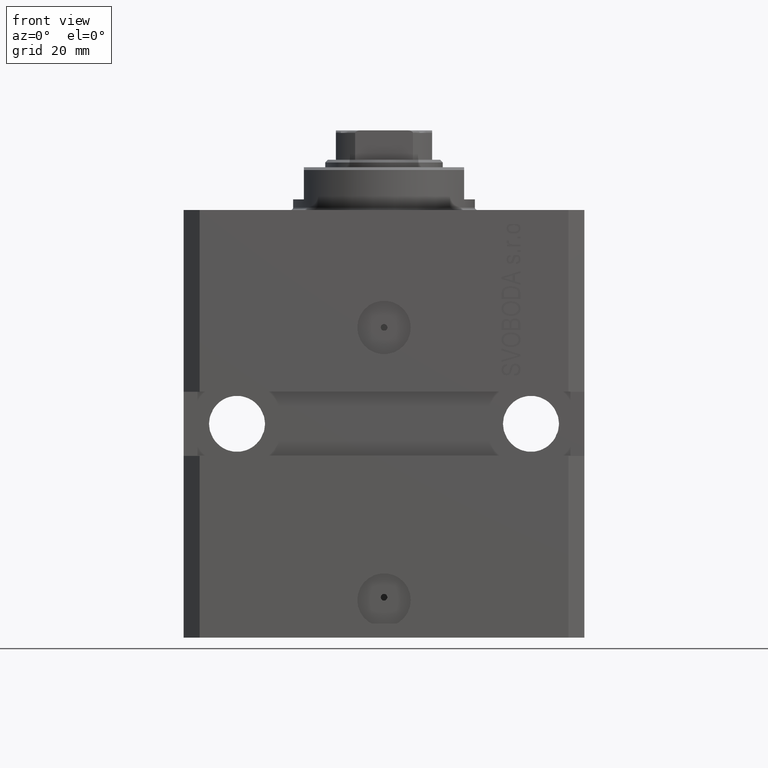
[diagram: clean part render]
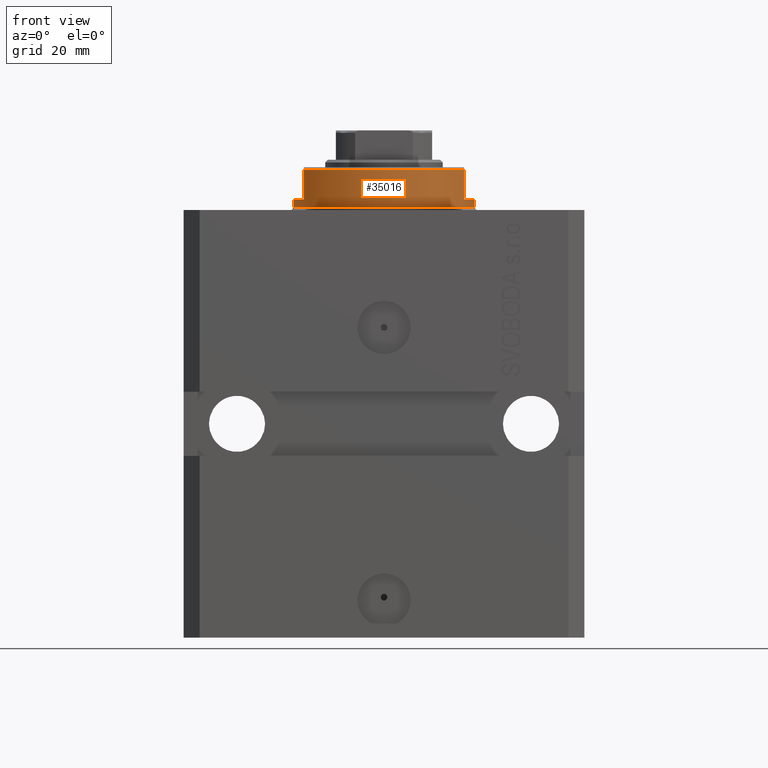
[diagram: same view with one face highlighted and labeled with its STEP entity id]
A machine part, front view. The second image highlights one B-rep face of the part: STEP entity #35016.
In plain terms, the highlighted cylindrical surface (partial cylindrical patch) has radius 17 mm, axis along (0, 0, -1).
Its self-contained STEP definition (entity closure, byte-faithful):
#840 = DIRECTION ( 'NONE',  ( -0.000000000000000000, -0.000000000000000000, 1.000000000000000000 ) ) ;
#2029 = EDGE_CURVE ( 'NONE', #18910, #21755, #34801, .T. ) ;
#2096 = CARTESIAN_POINT ( 'NONE',  ( 17.00000000000000000, 0.000000000000000000, -0.5000000000000004441 ) ) ;
#2336 = ORIENTED_EDGE ( 'NONE', *, *, #8224, .F. ) ;
#3098 = AXIS2_PLACEMENT_3D ( 'NONE', #26187, #840, #25966 ) ;
#4257 = DIRECTION ( 'NONE',  ( -0.000000000000000000, -0.000000000000000000, 1.000000000000000000 ) ) ;
#5372 = VERTEX_POINT ( 'NONE', #14368 ) ;
#8224 = EDGE_CURVE ( 'NONE', #18910, #28346, #45384, .T. ) ;
#8419 = AXIS2_PLACEMENT_3D ( 'NONE', #19452, #30835, #34373 ) ;
#8452 = CIRCLE ( 'NONE', #19822, 17.00000000000000000 ) ;
#8986 = CARTESIAN_POINT ( 'NONE',  ( -17.00000000000000000, 2.081899558550500280E-15, -0.5000000000000004441 ) ) ;
#9517 = CARTESIAN_POINT ( 'NONE',  ( 0.000000000000000000, 0.000000000000000000, -7.500000000000013323 ) ) ;
#9877 = CARTESIAN_POINT ( 'NONE',  ( 14.99999999999999645, -8.000000000000003553, -2.000000000000000000 ) ) ;
#10511 = VERTEX_POINT ( 'NONE', #13228 ) ;
#11768 = DIRECTION ( 'NONE',  ( 0.000000000000000000, 0.000000000000000000, -1.000000000000000000 ) ) ;
#11980 = CARTESIAN_POINT ( 'NONE',  ( 0.000000000000000000, 0.000000000000000000, -0.5000000000000004441 ) ) ;
#12529 = EDGE_CURVE ( 'NONE', #35964, #24806, #34895, .T. ) ;
#13228 = CARTESIAN_POINT ( 'NONE',  ( 17.00000000000000000, 0.000000000000000000, -2.000000000000000000 ) ) ;
#13416 = CARTESIAN_POINT ( 'NONE',  ( -17.00000000000000000, 2.081899558550500280E-15, -8.000000000000000000 ) ) ;
#14368 = CARTESIAN_POINT ( 'NONE',  ( 15.00000000000000000, -8.000000000000001776, -7.500000000000013323 ) ) ;
#15620 = VECTOR ( 'NONE', #42568, 1000.000000000000000 ) ;
#16168 = DIRECTION ( 'NONE',  ( 0.000000000000000000, 0.000000000000000000, 1.000000000000000000 ) ) ;
#16520 = EDGE_CURVE ( 'NONE', #10511, #35964, #30313, .T. ) ;
#16770 = AXIS2_PLACEMENT_3D ( 'NONE', #11980, #29985, #44437 ) ;
#17014 = ORIENTED_EDGE ( 'NONE', *, *, #33891, .F. ) ;
#18910 = VERTEX_POINT ( 'NONE', #35532 ) ;
#19439 = DIRECTION ( 'NONE',  ( 0.000000000000000000, 0.000000000000000000, -1.000000000000000000 ) ) ;
#19452 = CARTESIAN_POINT ( 'NONE',  ( 0.000000000000000000, 0.000000000000000000, -2.000000000000000000 ) ) ;
#19822 = AXIS2_PLACEMENT_3D ( 'NONE', #9517, #16168, #23982 ) ;
#19919 = DIRECTION ( 'NONE',  ( -1.000000000000000000, 0.000000000000000000, 0.000000000000000000 ) ) ;
#20289 = LINE ( 'NONE', #13416, #15620 ) ;
#20388 = AXIS2_PLACEMENT_3D ( 'NONE', #44322, #19439, #19919 ) ;
#20792 = ORIENTED_EDGE ( 'NONE', *, *, #12529, .T. ) ;
#21273 = ORIENTED_EDGE ( 'NONE', *, *, #2029, .T. ) ;
#21755 = VERTEX_POINT ( 'NONE', #32701 ) ;
#23982 = DIRECTION ( 'NONE',  ( -1.000000000000000000, 0.000000000000000000, 0.000000000000000000 ) ) ;
#24806 = VERTEX_POINT ( 'NONE', #8986 ) ;
#25021 = VECTOR ( 'NONE', #11768, 1000.000000000000000 ) ;
#25222 = EDGE_CURVE ( 'NONE', #28346, #24806, #20289, .T. ) ;
#25966 = DIRECTION ( 'NONE',  ( 1.000000000000000000, 0.000000000000000000, 0.000000000000000000 ) ) ;
#26187 = CARTESIAN_POINT ( 'NONE',  ( 0.000000000000000000, 0.000000000000000000, -8.000000000000000000 ) ) ;
#26294 = CARTESIAN_POINT ( 'NONE',  ( 17.00000000000000000, 0.000000000000000000, -8.000000000000000000 ) ) ;
#26296 = VERTEX_POINT ( 'NONE', #9877 ) ;
#28346 = VERTEX_POINT ( 'NONE', #38338 ) ;
#28868 = CIRCLE ( 'NONE', #8419, 17.00000000000000000 ) ;
#29506 = FACE_OUTER_BOUND ( 'NONE', #30027, .T. ) ;
#29985 = DIRECTION ( 'NONE',  ( -0.000000000000000000, -0.000000000000000000, -1.000000000000000000 ) ) ;
#30027 = EDGE_LOOP ( 'NONE', ( #42067, #2336, #21273, #42523, #17014, #45701, #32247, #20792 ) ) ;
#30313 = LINE ( 'NONE', #26294, #31113 ) ;
#30835 = DIRECTION ( 'NONE',  ( 0.000000000000000000, 0.000000000000000000, -1.000000000000000000 ) ) ;
#31113 = VECTOR ( 'NONE', #4257, 1000.000000000000000 ) ;
#32247 = ORIENTED_EDGE ( 'NONE', *, *, #16520, .T. ) ;
#32701 = CARTESIAN_POINT ( 'NONE',  ( -15.00000000000000000, -8.000000000000001776, -7.500000000000014211 ) ) ;
#33891 = EDGE_CURVE ( 'NONE', #26296, #5372, #41143, .T. ) ;
#34373 = DIRECTION ( 'NONE',  ( -1.000000000000000000, 0.000000000000000000, 0.000000000000000000 ) ) ;
#34801 = LINE ( 'NONE', #45939, #44398 ) ;
#34895 = CIRCLE ( 'NONE', #16770, 17.00000000000000000 ) ;
#35016 = ADVANCED_FACE ( 'NONE', ( #29506 ), #43951, .T. ) ;
#35532 = CARTESIAN_POINT ( 'NONE',  ( -14.99999999999999645, -8.000000000000003553, -2.000000000000000000 ) ) ;
#35964 = VERTEX_POINT ( 'NONE', #2096 ) ;
#37842 = CARTESIAN_POINT ( 'NONE',  ( 15.00000000000000000, -8.000000000000001776, -8.000000000000000000 ) ) ;
#38338 = CARTESIAN_POINT ( 'NONE',  ( -17.00000000000000000, 2.081899558550500280E-15, -2.000000000000000000 ) ) ;
#38845 = DIRECTION ( 'NONE',  ( 0.000000000000000000, 0.000000000000000000, -1.000000000000000000 ) ) ;
#39255 = EDGE_CURVE ( 'NONE', #21755, #5372, #8452, .T. ) ;
#41143 = LINE ( 'NONE', #37842, #25021 ) ;
#41348 = EDGE_CURVE ( 'NONE', #10511, #26296, #28868, .T. ) ;
#42067 = ORIENTED_EDGE ( 'NONE', *, *, #25222, .F. ) ;
#42523 = ORIENTED_EDGE ( 'NONE', *, *, #39255, .T. ) ;
#42568 = DIRECTION ( 'NONE',  ( -0.000000000000000000, -0.000000000000000000, 1.000000000000000000 ) ) ;
#43951 = CYLINDRICAL_SURFACE ( 'NONE', #3098, 17.00000000000000000 ) ;
#44322 = CARTESIAN_POINT ( 'NONE',  ( 0.000000000000000000, 0.000000000000000000, -2.000000000000000000 ) ) ;
#44398 = VECTOR ( 'NONE', #38845, 1000.000000000000000 ) ;
#44437 = DIRECTION ( 'NONE',  ( 1.000000000000000000, 0.000000000000000000, 0.000000000000000000 ) ) ;
#45384 = CIRCLE ( 'NONE', #20388, 17.00000000000000000 ) ;
#45701 = ORIENTED_EDGE ( 'NONE', *, *, #41348, .F. ) ;
#45939 = CARTESIAN_POINT ( 'NONE',  ( -15.00000000000000000, -8.000000000000001776, -8.000000000000000000 ) ) ;